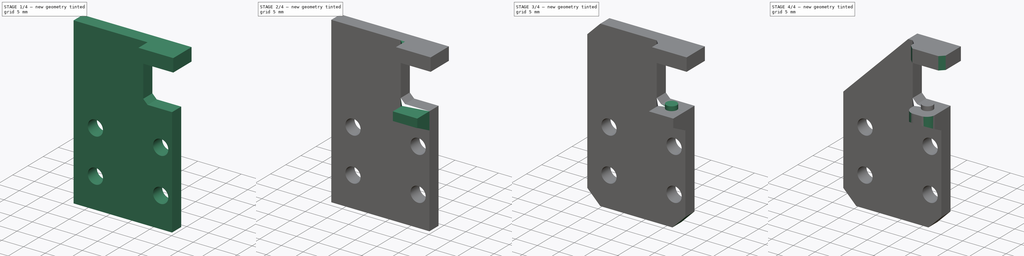
[diagram: build sequence overview — one tinted view per stage of 4, left to right]
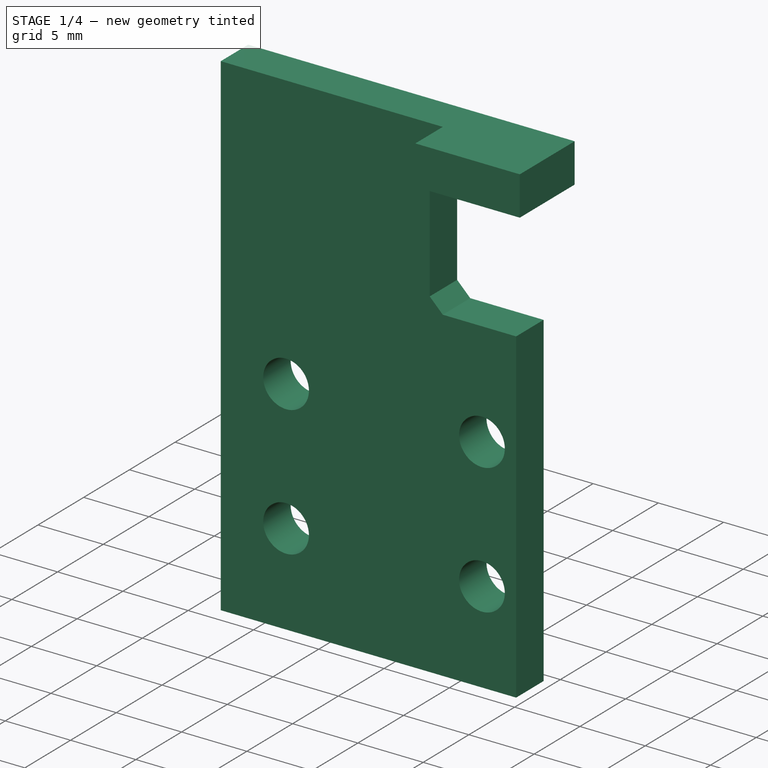
[diagram: stage 1 of 4 — iso view after this stage's code; geometry added in this stage tinted green]
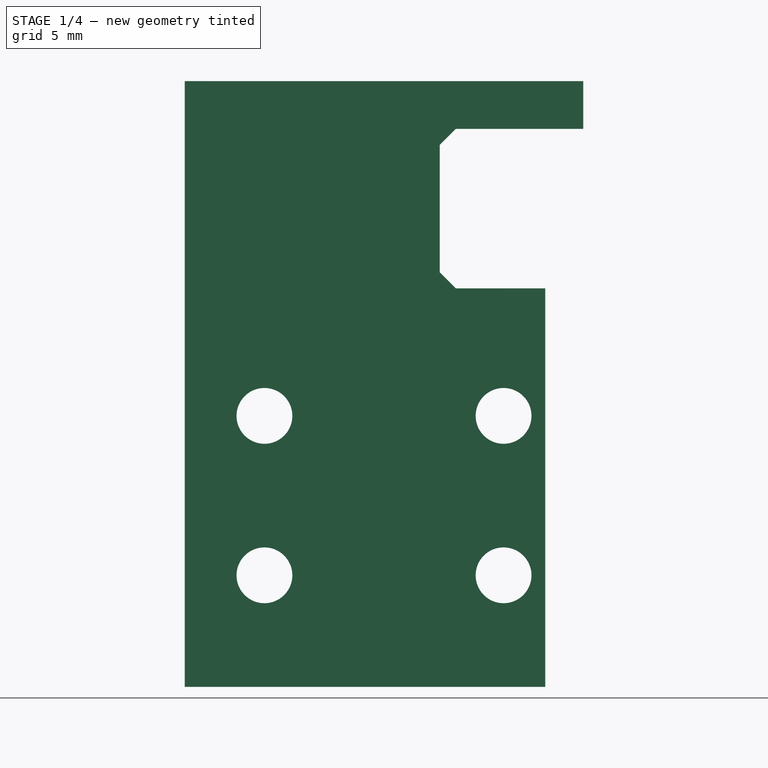
[diagram: stage 1 of 4 — front view after this stage's code; geometry added in this stage tinted green]
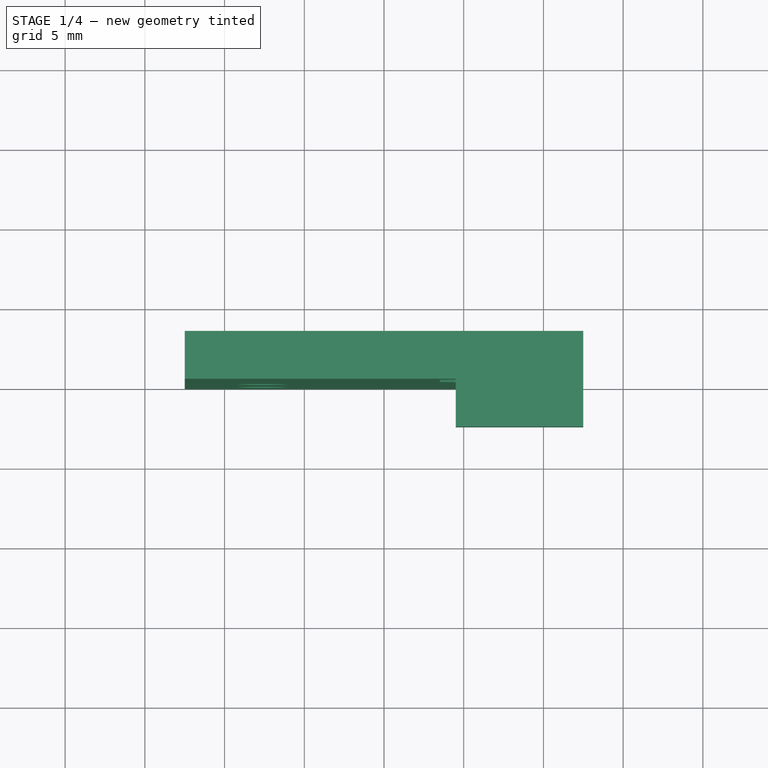
[diagram: stage 1 of 4 — top view after this stage's code; geometry added in this stage tinted green]
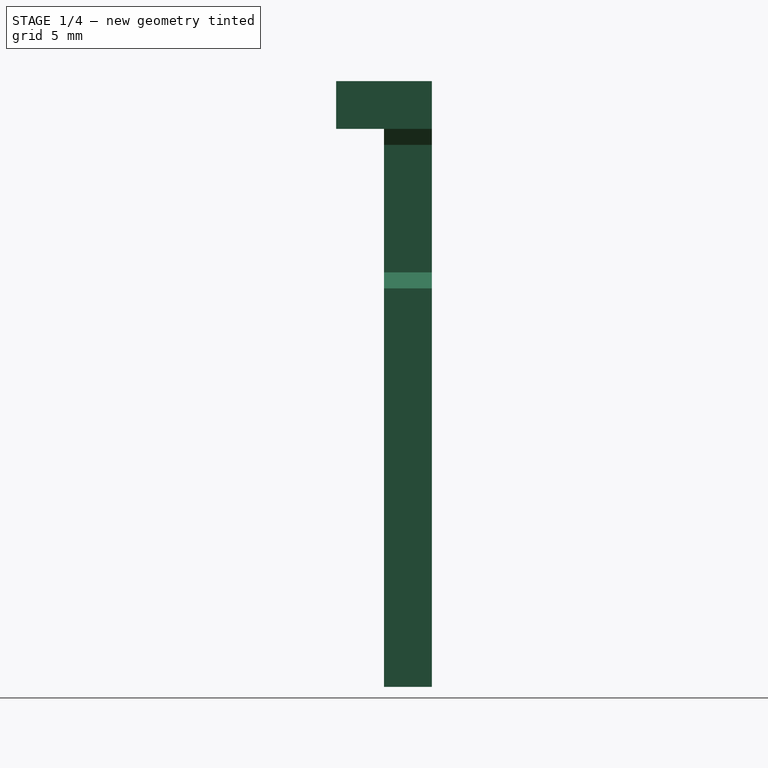
[diagram: stage 1 of 4 — right view after this stage's code; geometry added in this stage tinted green]
FCSTD DOCUMENT  (FreeCAD 0.19R24291 (Git))
Label: z-gantry
License: All rights reserved
LicenseURL: http://en.wikipedia.org/wiki/All_rights_reserved
objects: Sketcher::SketchObject×6, PartDesign::Pad×4, PartDesign::Chamfer×4, PartDesign::Pocket×2, PartDesign::Fillet×1, PartDesign::Body×1
note: 29 computed .brp shape members not serialized (recipe doc carries the construction recipe); baked Part::Feature solids carry a one-line shape summary decoded from their .brp

FEATURE [Sketcher::SketchObject] Sketch
  FullyConstrained = true
  MapMode = 5
  Placement = pos=(0,0,0) rot=(1,0,0;1.5708rad)
  Support = -> [XZ_Plane]
  sketch-geometry (12):
    g0: LineSegment StartX=-7.5 StartY=5 StartZ=0 EndX=7.5 EndY=5 EndZ=0
    g1: LineSegment StartX=7.5 StartY=5 StartZ=0 EndX=7.5 EndY=-5 EndZ=0
    g2: LineSegment StartX=7.5 StartY=-5 StartZ=0 EndX=-7.5 EndY=-5 EndZ=0
    g3: LineSegment StartX=-7.5 StartY=-5 StartZ=0 EndX=-7.5 EndY=5 EndZ=0
    g4: Circle CenterX=-7.5 CenterY=5 CenterZ=0 NormalX=0 NormalY=0 NormalZ=1 AngleXU=0 Radius=1.75
    g5: Circle CenterX=-7.5 CenterY=-5 CenterZ=0 NormalX=0 NormalY=0 NormalZ=1 AngleXU=0 Radius=1.75
    g6: Circle CenterX=7.5 CenterY=-5 CenterZ=0 NormalX=0 NormalY=0 NormalZ=1 AngleXU=0 Radius=1.75
    g7: Circle CenterX=7.5 CenterY=5 CenterZ=0 NormalX=0 NormalY=0 NormalZ=1 AngleXU=0 Radius=1.75
    g8: LineSegment StartX=-12.5 StartY=26 StartZ=0 EndX=12.5 EndY=26 EndZ=0
    g9: LineSegment StartX=12.5 StartY=26 StartZ=0 EndX=12.5 EndY=-12 EndZ=0
    g10: LineSegment StartX=12.5 StartY=-12 StartZ=0 EndX=-12.5 EndY=-12 EndZ=0
    g11: LineSegment StartX=-12.5 StartY=-12 StartZ=0 EndX=-12.5 EndY=26 EndZ=0
  constraints (32):
    c: Coincident(g0,g1)
    c: Coincident(g1,g2)
    c: Coincident(g2,g3)
    c: Coincident(g3,g0)
    c: Horizontal(g0)
    c: Horizontal(g2)
    c: Vertical(g1)
    c: Vertical(g3)
    c: Coincident(g4,g0)
    c: Coincident(g5,g2)
    c: Coincident(g6,g1)
    c: Coincident(g7,g0)
    c: Diameter(g4) = 3.5
    c: Diameter(g7) = 3.5
    c: Diameter(g6) = 3.5
    c: Diameter(g5) = 3.5
    c: Distance(g0) = 15
    c: Distance(g3) = 10
    c: DistanceY(g-1,g4) = 5
    c: DistanceX(g4,g-1) = 7.5
    c: Coincident(g8,g9)
    c: Coincident(g9,g10)
    c: Coincident(g10,g11)
    c: Coincident(g11,g8)
    c: Horizontal(g8)
    c: Horizontal(g10)
    c: Vertical(g9)
    c: Vertical(g11)
    c: DistanceY(g-1,g8) = 26
    c: DistanceY(g10,g-1) = 12
    c: DistanceX(g8,g8) = 25
    c: DistanceX(g8,g-1) = 12.5
FEATURE [PartDesign::Pad] Pad
  Direction = (1,1,1)
  Length = 3
  Length2 = 100
  Placement = pos=(0,0,0) rot=(1,0,0;1.5708rad)
  Profile = -> Sketch
  Reversed = true
  Type = 0
FEATURE [Sketcher::SketchObject] Sketch001
  ExternalGeometry = -> [Sketch]
  FullyConstrained = true
  MapMode = 5
  Placement = pos=(0,0,0) rot=(1,0,0;1.5708rad)
  Support = -> [Pad]
  sketch-geometry (4):
    g0: LineSegment StartX=12.5 StartY=26 StartZ=0 EndX=4.5 EndY=26 EndZ=0
    g1: LineSegment StartX=4.5 StartY=26 StartZ=0 EndX=4.5 EndY=23 EndZ=0
    g2: LineSegment StartX=4.5 StartY=23 StartZ=0 EndX=12.5 EndY=23 EndZ=0
    g3: LineSegment StartX=12.5 StartY=23 StartZ=0 EndX=12.5 EndY=26 EndZ=0
  constraints (11):
    c: Coincident(g0,g1)
    c: Coincident(g1,g2)
    c: Coincident(g2,g3)
    c: Coincident(g3,g0)
    c: Horizontal(g0)
    c: Horizontal(g2)
    c: Vertical(g1)
    c: Vertical(g3)
    c: Coincident(g0,g-4)
    c: DistanceY(g1,g1) = 3
    c: DistanceX(g2,g2) = 8
FEATURE [PartDesign::Pad] Pad001
  BaseFeature = -> Pad
  Direction = (1,1,1)
  Length = 3
  Length2 = 100
  Placement = pos=(0,0,0) rot=(1,0,0;1.5708rad)
  Profile = -> Sketch001
  Type = 0
FEATURE [Sketcher::SketchObject] Sketch002
  ExternalGeometry = -> [Pad001]
  FullyConstrained = false
  MapMode = 5
  Placement = pos=(0,0,0) rot=(1,0,0;1.5708rad)
  Support = -> [Pad001]
  sketch-geometry (9):
    g0: LineSegment StartX=12.5 StartY=23 StartZ=0 EndX=4.5 EndY=23 EndZ=0
    g1: LineSegment StartX=4.5 StartY=23 StartZ=0 EndX=3.5 EndY=22 EndZ=0
    g2: LineSegment StartX=3.5 StartY=22 StartZ=0 EndX=3.5 EndY=14 EndZ=0
    g3: LineSegment StartX=3.5 StartY=14 StartZ=0 EndX=4.5 EndY=13 EndZ=0
    g4: LineSegment StartX=4.5 StartY=13 StartZ=0 EndX=10.1187 EndY=13 EndZ=0
    g5: LineSegment StartX=10.1187 StartY=13 StartZ=0 EndX=10.1187 EndY=-14.226 EndZ=0
    g6: LineSegment StartX=10.1187 StartY=-14.226 StartZ=0 EndX=16.4968 EndY=-14.226 EndZ=0
    g7: LineSegment StartX=16.4968 StartY=-14.226 StartZ=0 EndX=16.4968 EndY=19.7121 EndZ=0
    g8: LineSegment StartX=16.4968 StartY=19.7121 StartZ=0 EndX=12.5 EndY=23 EndZ=0
  constraints (21):
    c: Coincident(g-3,g0)
    c: Coincident(g0,g1)
    c: Coincident(g1,g2)
    c: Vertical(g2)
    c: Coincident(g2,g3)
    c: Coincident(g3,g4)
    c: Horizontal(g4)
    c: Coincident(g4,g5)
    c: Vertical(g5)
    c: Coincident(g5,g6)
    c: Horizontal(g6)
    c: Coincident(g6,g7)
    c: Vertical(g7)
    c: Coincident(g7,g8)
    c: Coincident(g8,g0)
    c: Coincident(g-3,g0)
    c: Angle(g2,g1) = 2.35619
    c: Angle(g3,g2) = 2.35619
    c: DistanceY(g3,g0) = 10
    c: DistanceX(g1,g0) = 1
    c: DistanceX(g2,g3) = 1
FEATURE [PartDesign::Pocket] Pocket
  BaseFeature = -> Pad001
  Length = 5
  Length2 = 100
  Placement = pos=(0,0,0) rot=(1,0,0;1.5708rad)
  Profile = -> Sketch002
  Type = 0
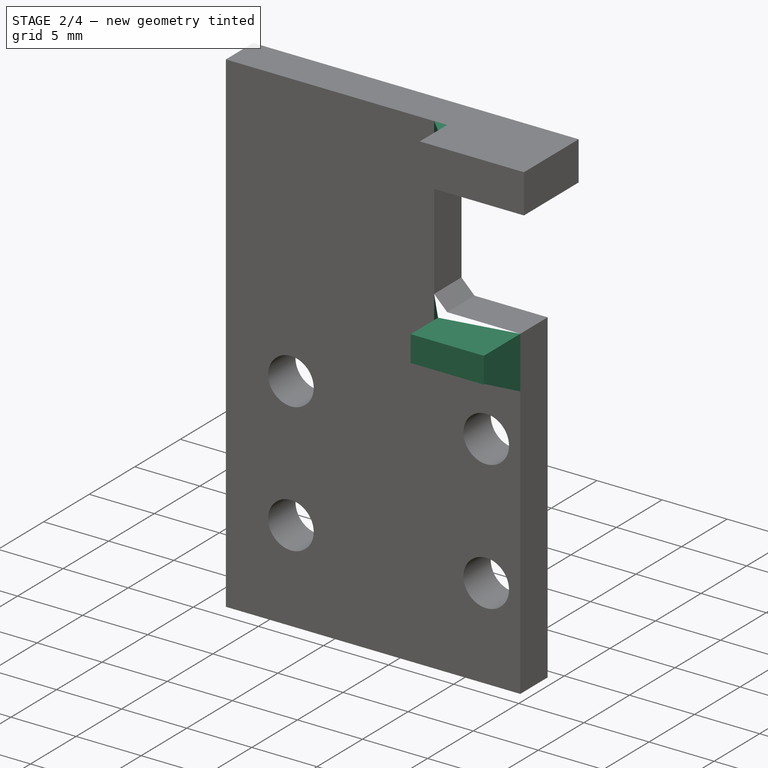
[diagram: stage 2 of 4 — iso view after this stage's code; geometry added in this stage tinted green]
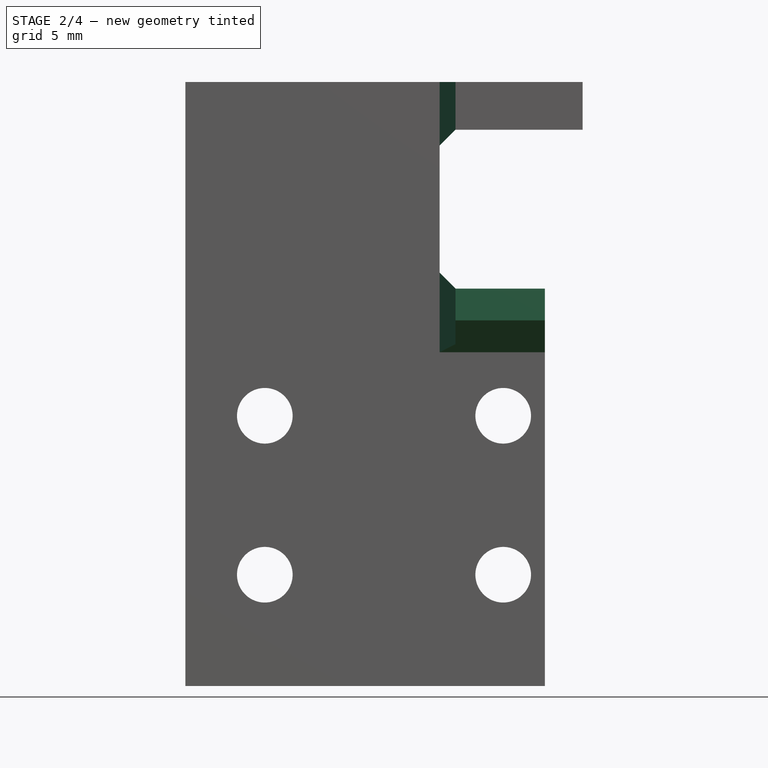
[diagram: stage 2 of 4 — front view after this stage's code; geometry added in this stage tinted green]
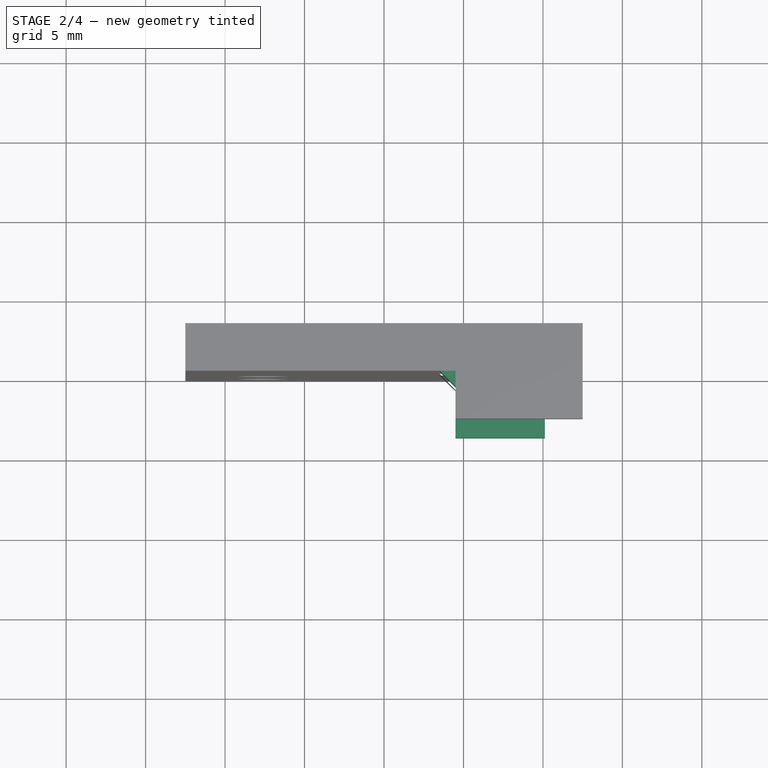
[diagram: stage 2 of 4 — top view after this stage's code; geometry added in this stage tinted green]
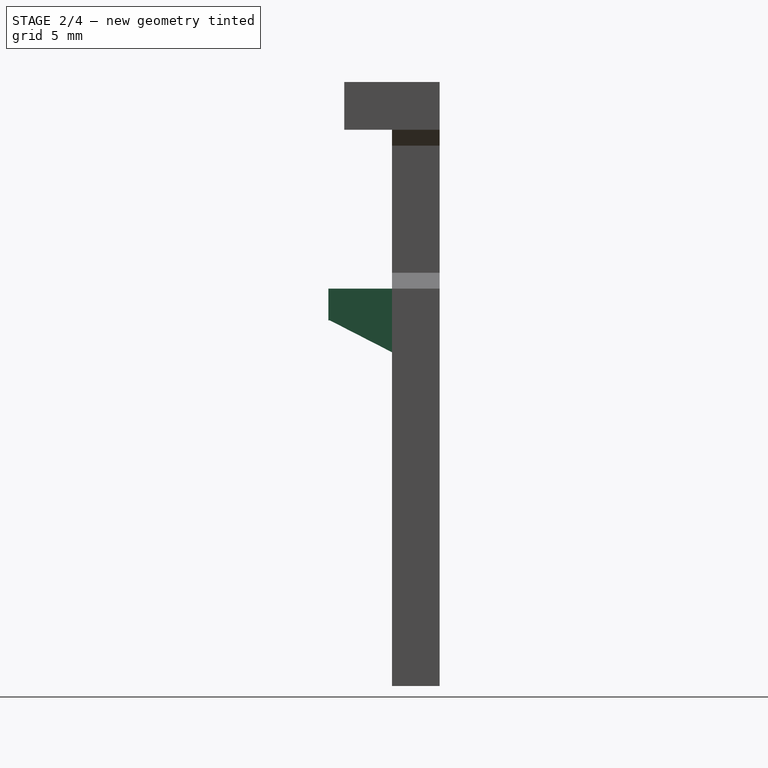
[diagram: stage 2 of 4 — right view after this stage's code; geometry added in this stage tinted green]
FEATURE [Sketcher::SketchObject] Sketch003
  ExternalGeometry = -> [Pocket]
  FullyConstrained = true
  MapMode = 5
  Placement = pos=(0,-2.9e-15,13) rot=(0,0,1;3.14159rad)
  Support = -> [Pocket]
  sketch-geometry (4):
    g0: LineSegment StartX=-10.1187 StartY=0 StartZ=0 EndX=-4.5 EndY=0 EndZ=0
    g1: LineSegment StartX=-4.5 StartY=0 StartZ=0 EndX=-4.5 EndY=4 EndZ=0
    g2: LineSegment StartX=-4.5 StartY=4 StartZ=0 EndX=-10.1187 EndY=4 EndZ=0
    g3: LineSegment StartX=-10.1187 StartY=4 StartZ=0 EndX=-10.1187 EndY=0 EndZ=0
  constraints (10):
    c: Coincident(g0,g1)
    c: Coincident(g1,g2)
    c: Coincident(g2,g3)
    c: Coincident(g3,g0)
    c: Horizontal(g2)
    c: Vertical(g1)
    c: Vertical(g3)
    c: Coincident(g0,g-3)
    c: DistanceY(g3,g3) = 4
    c: Coincident(g-3,g0)
FEATURE [PartDesign::Pad] Pad002
  BaseFeature = -> Pocket
  Direction = (1,1,1)
  Length = 2
  Length2 = 100
  Placement = pos=(0,0,0) rot=(1,0,0;1.5708rad)
  Profile = -> Sketch003
  Reversed = true
  Type = 0
FEATURE [PartDesign::Chamfer] Chamfer
  Angle = 45
  Base = -> Pad002 [Edge13]
  BaseFeature = -> Pad002
  ChamferType = 1
  FlipDirection = false
  Placement = pos=(0,0,0) rot=(1,0,0;1.5708rad)
  Size = 2
  Size2 = 3.9
  SupportTransform = false
FEATURE [PartDesign::Chamfer] Chamfer001
  Angle = 45
  Base = -> Chamfer [Edge9,Edge4]
  BaseFeature = -> Chamfer
  ChamferType = 0
  FlipDirection = false
  Placement = pos=(0,0,0) rot=(1,0,0;1.5708rad)
  Size = 1
  Size2 = 1
  SupportTransform = false
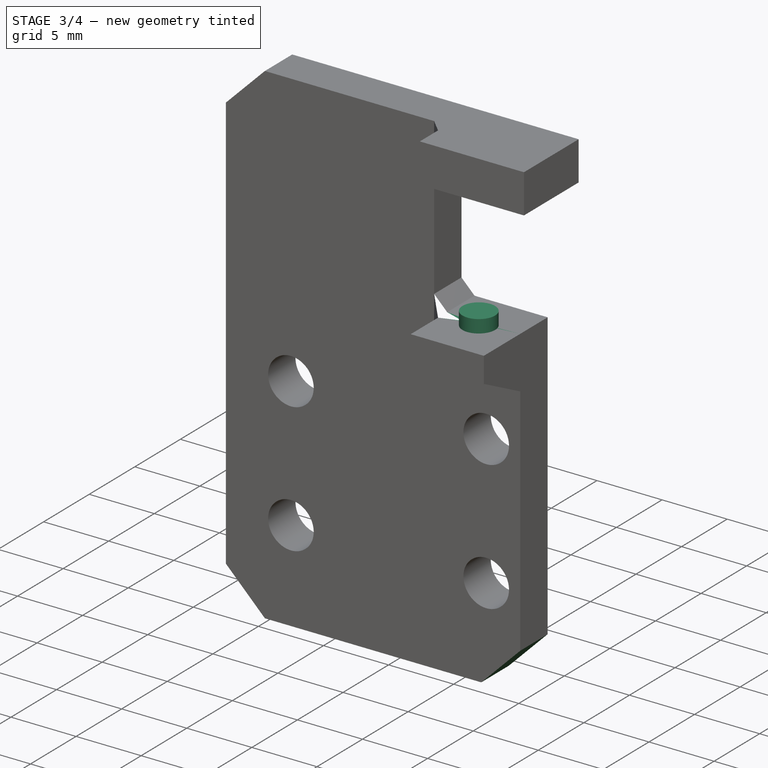
[diagram: stage 3 of 4 — iso view after this stage's code; geometry added in this stage tinted green]
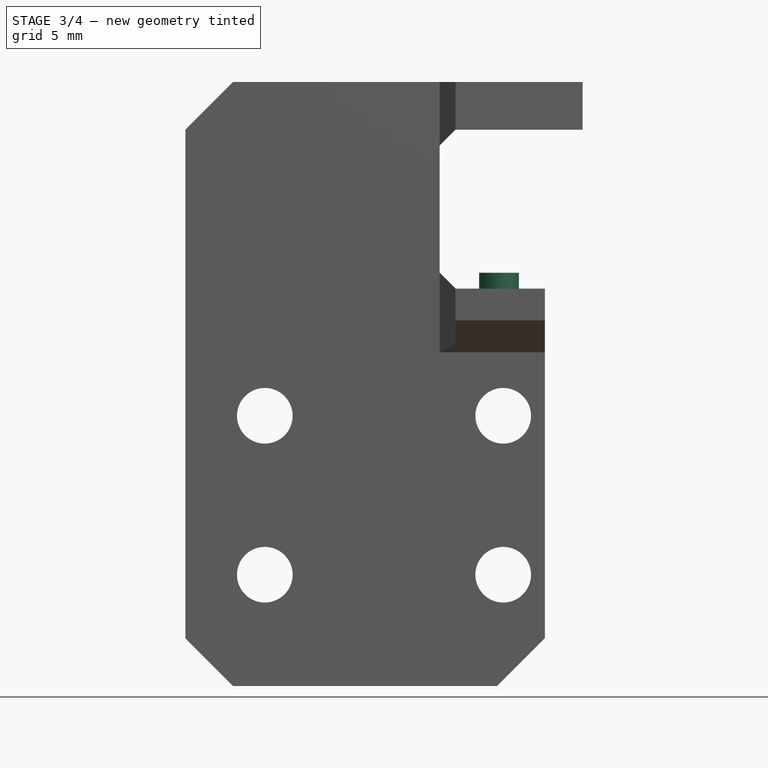
[diagram: stage 3 of 4 — front view after this stage's code; geometry added in this stage tinted green]
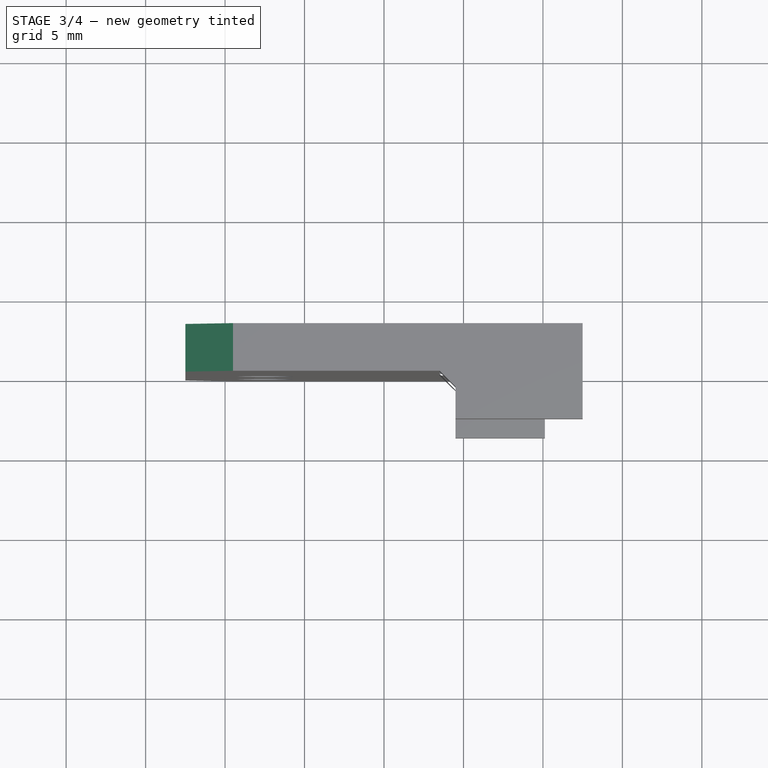
[diagram: stage 3 of 4 — top view after this stage's code; geometry added in this stage tinted green]
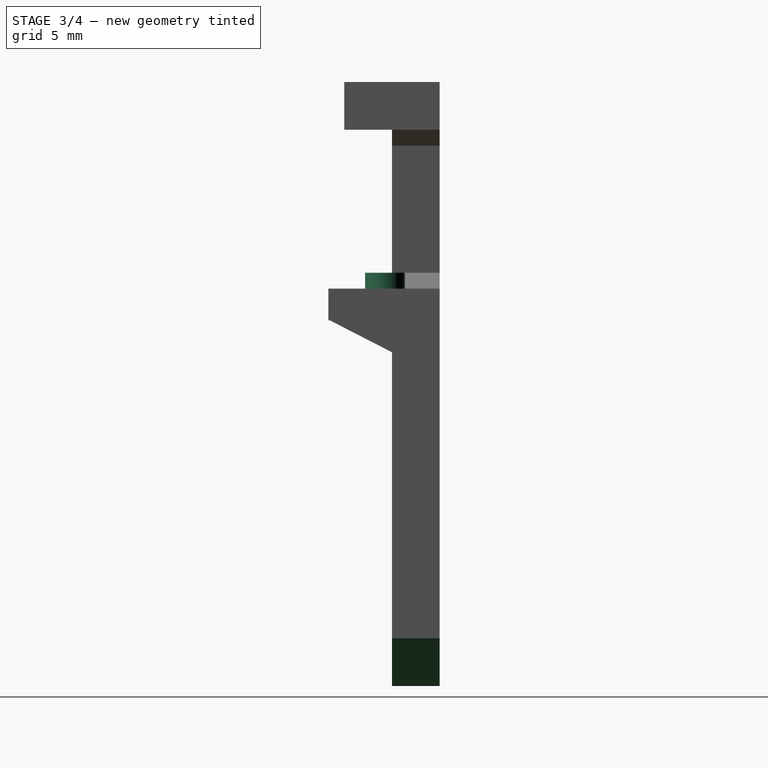
[diagram: stage 3 of 4 — right view after this stage's code; geometry added in this stage tinted green]
FEATURE [PartDesign::Chamfer] Chamfer002
  Angle = 45
  Base = -> Chamfer001 [Edge29,Edge23,Edge15]
  BaseFeature = -> Chamfer001
  ChamferType = 0
  FlipDirection = false
  Placement = pos=(0,0,0) rot=(1,0,0;1.5708rad)
  Size = 3
  Size2 = 1
  SupportTransform = false
FEATURE [Sketcher::SketchObject] Sketch004
  ExternalGeometry = -> [Chamfer002]
  FullyConstrained = false
  MapMode = 5
  Placement = pos=(0,0,13) rot=(0,0,1;3.14159rad)
  Support = -> [Chamfer002]
  sketch-geometry (1):
    g0: Circle CenterX=-7.23867 CenterY=0.439998 CenterZ=0 NormalX=0 NormalY=0 NormalZ=1 AngleXU=0 Radius=1.25
  constraints (1):
    c: Diameter(g0) = 2.5
FEATURE [PartDesign::Pad] Pad003
  BaseFeature = -> Chamfer002
  Direction = (1,1,1)
  Length = 1
  Length2 = 100
  Placement = pos=(0,0,0) rot=(1,0,0;1.5708rad)
  Profile = -> Sketch004
  Type = 0
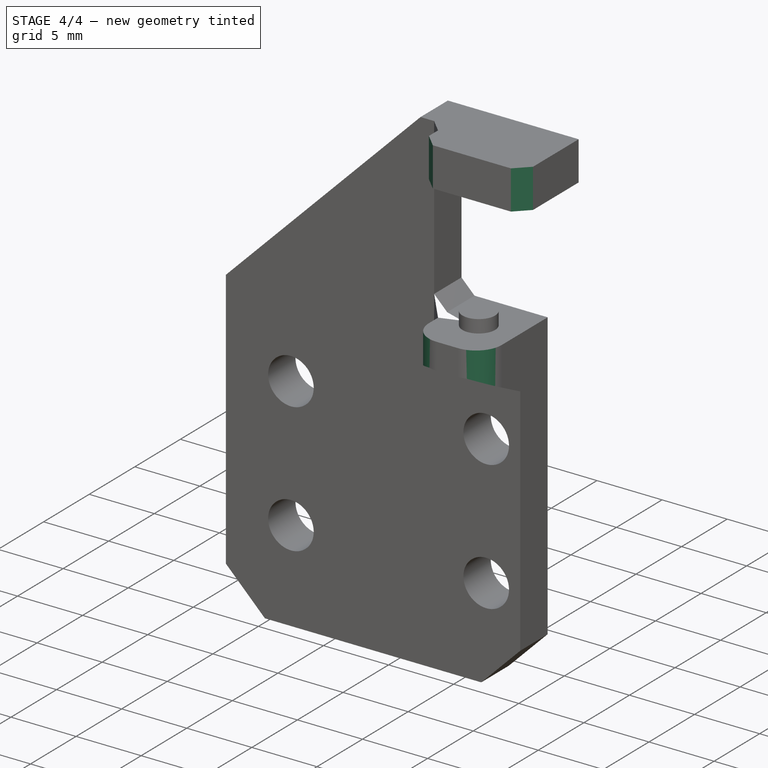
[diagram: stage 4 of 4 — iso view after this stage's code; geometry added in this stage tinted green]
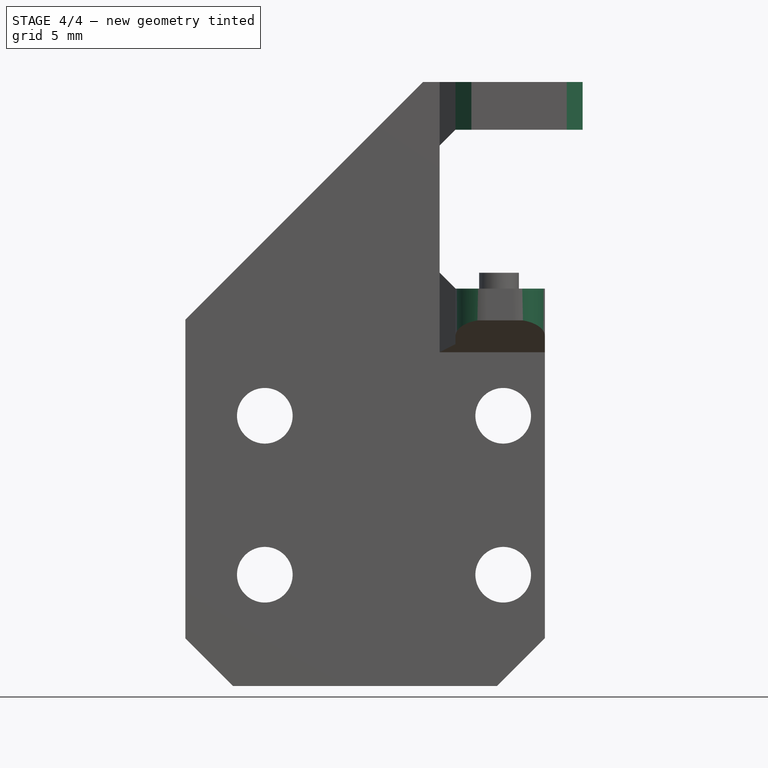
[diagram: stage 4 of 4 — front view after this stage's code; geometry added in this stage tinted green]
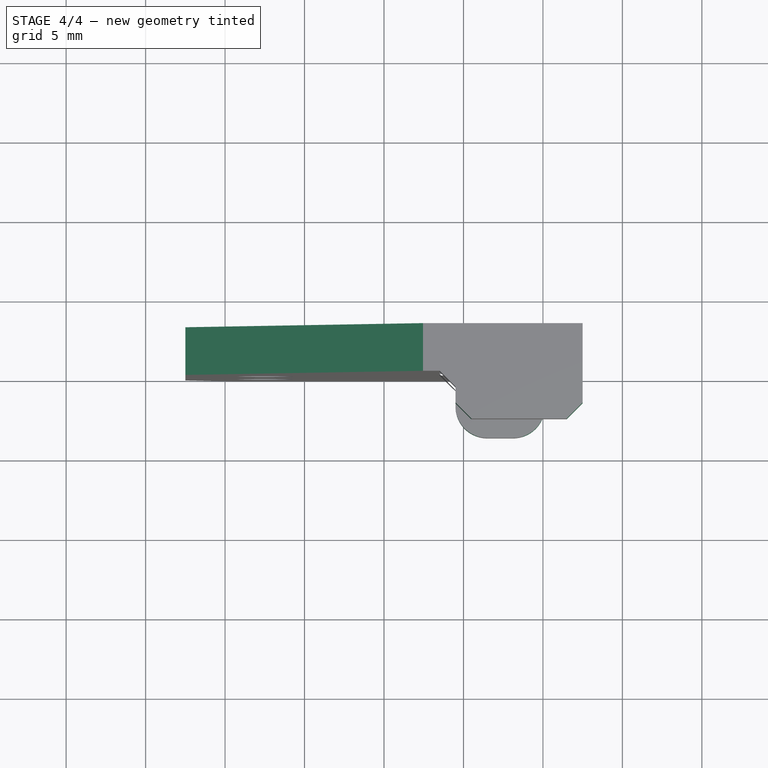
[diagram: stage 4 of 4 — top view after this stage's code; geometry added in this stage tinted green]
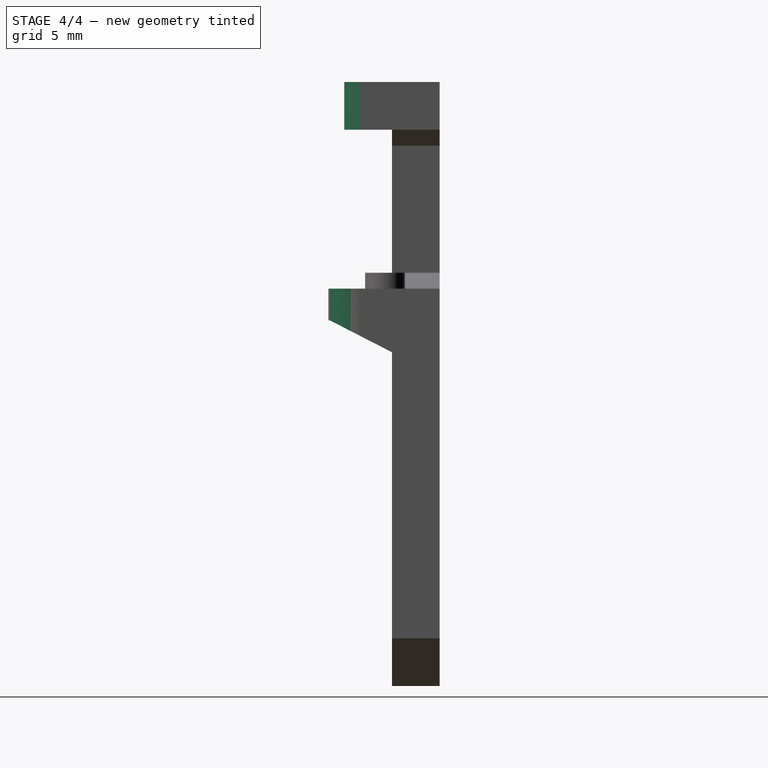
[diagram: stage 4 of 4 — right view after this stage's code; geometry added in this stage tinted green]
FEATURE [Sketcher::SketchObject] Sketch005
  FullyConstrained = false
  MapMode = 5
  Placement = pos=(0,0,0) rot=(1,0,0;1.5708rad)
  Support = -> [Pad003]
  sketch-geometry (3):
    g0: LineSegment StartX=-16.3009 StartY=7.24453 StartZ=0 EndX=3.80878 EndY=27.3543 EndZ=0
    g1: LineSegment StartX=3.80878 StartY=27.3543 StartZ=0 EndX=-16.3009 EndY=27.3543 EndZ=0
    g2: LineSegment StartX=-16.3009 StartY=27.3543 StartZ=0 EndX=-16.3009 EndY=7.24453 EndZ=0
  constraints (6):
    c: Coincident(g0,g1)
    c: Horizontal(g1)
    c: Coincident(g1,g2)
    c: Coincident(g2,g0)
    c: Vertical(g2)
    c: Angle(g1,g0) = 0.785398
FEATURE [PartDesign::Pocket] Pocket001
  BaseFeature = -> Pad003
  Length = 5
  Length2 = 100
  Placement = pos=(0,0,0) rot=(1,0,0;1.5708rad)
  Profile = -> Sketch005
  Type = 0
FEATURE [PartDesign::Fillet] Fillet
  Base = -> Pocket001 [Edge72,Edge66]
  BaseFeature = -> Pocket001
  Placement = pos=(0,0,0) rot=(1,0,0;1.5708rad)
  Radius = 2
  SupportTransform = false
FEATURE [PartDesign::Chamfer] Chamfer003
  Angle = 45
  Base = -> Fillet [Edge94,Edge102]
  BaseFeature = -> Fillet
  ChamferType = 0
  FlipDirection = false
  Placement = pos=(0,0,0) rot=(1,0,0;1.5708rad)
  Size = 1
  Size2 = 1
  SupportTransform = false
FEATURE [PartDesign::Body] Body
  Group = -> [Sketch,Pad,Sketch001,Pad001,Sketch002,Pocket,Sketch003,Pad002,Chamfer,Chamfer001,Chamfer002,Sketch004,Pad003,Sketch005,Pocket001,Fillet,Chamfer003]
  Origin = -> Origin
  Tip = -> Chamfer003
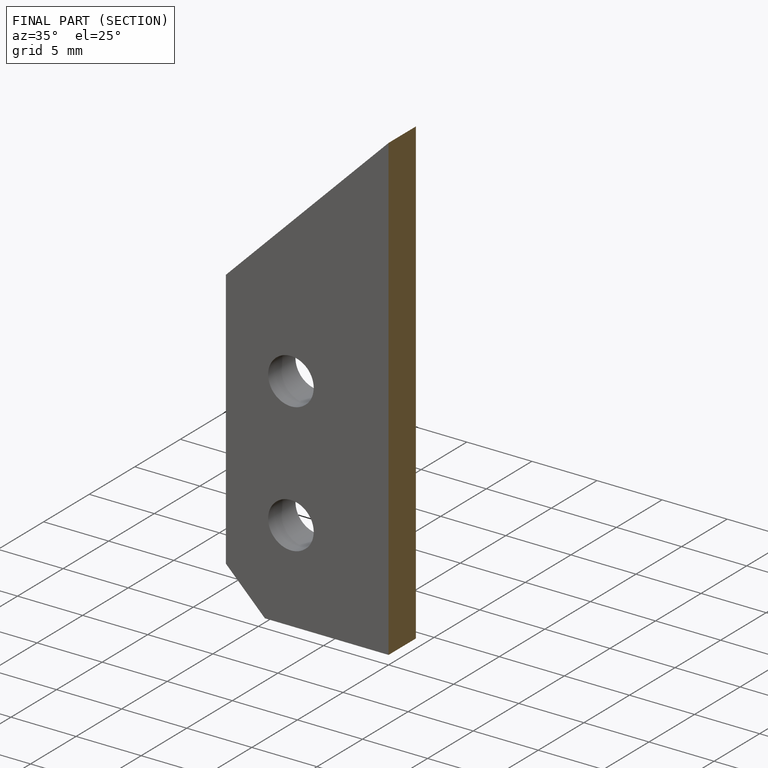
[diagram: finished part — half-section view (interior)]
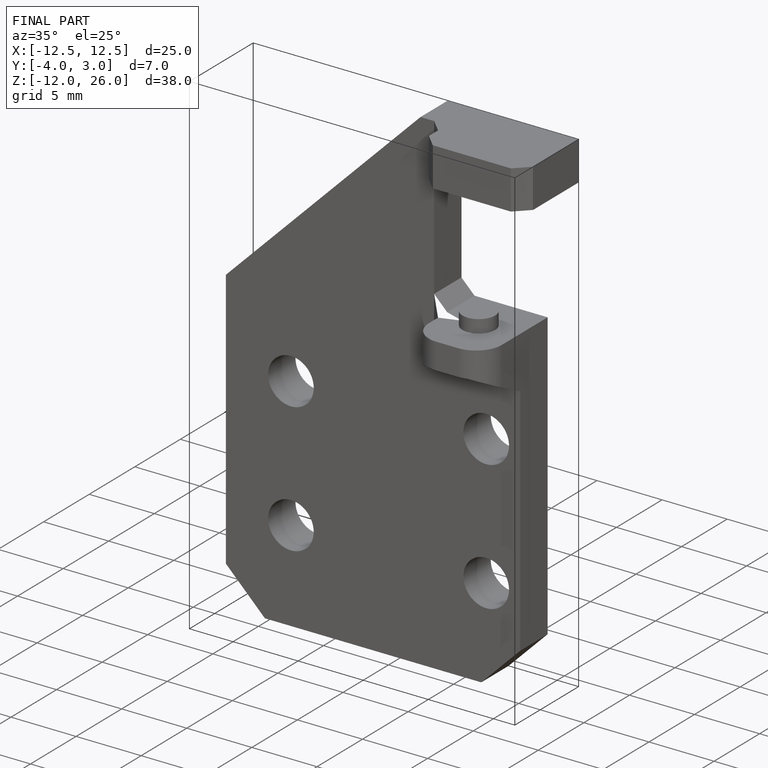
[diagram: finished part — iso view with bounding-box wireframe]
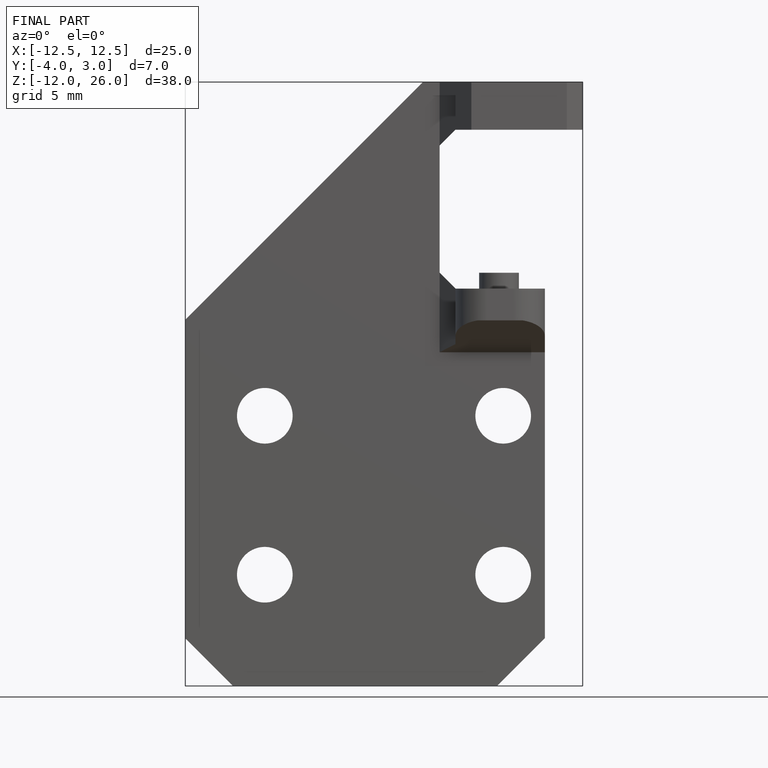
[diagram: finished part — front view with bounding-box wireframe]
